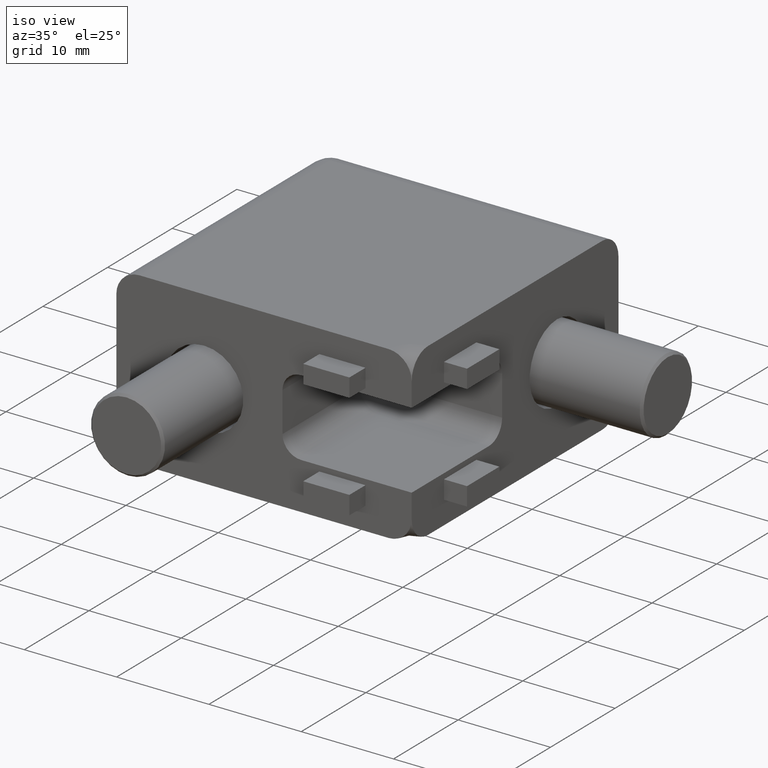
[diagram: clean part render]
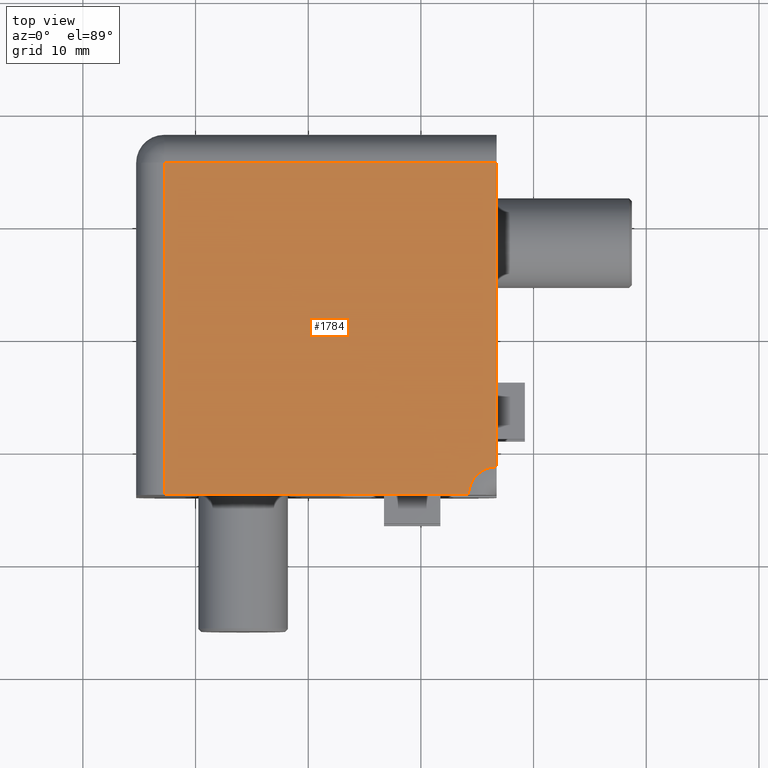
[diagram: tour spotlight — one face highlighted and labeled with its STEP entity id]
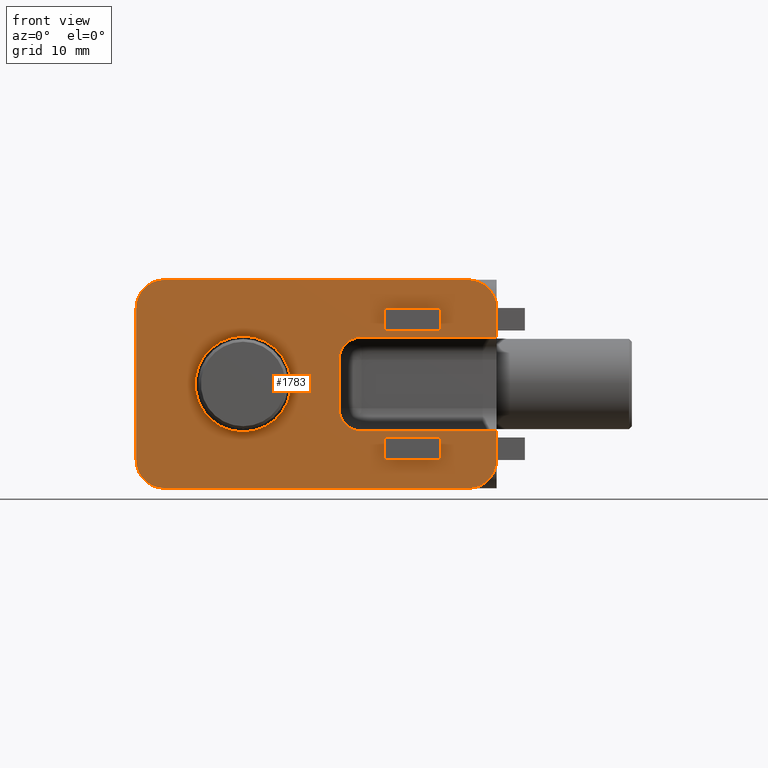
[diagram: tour spotlight — one face highlighted and labeled with its STEP entity id]
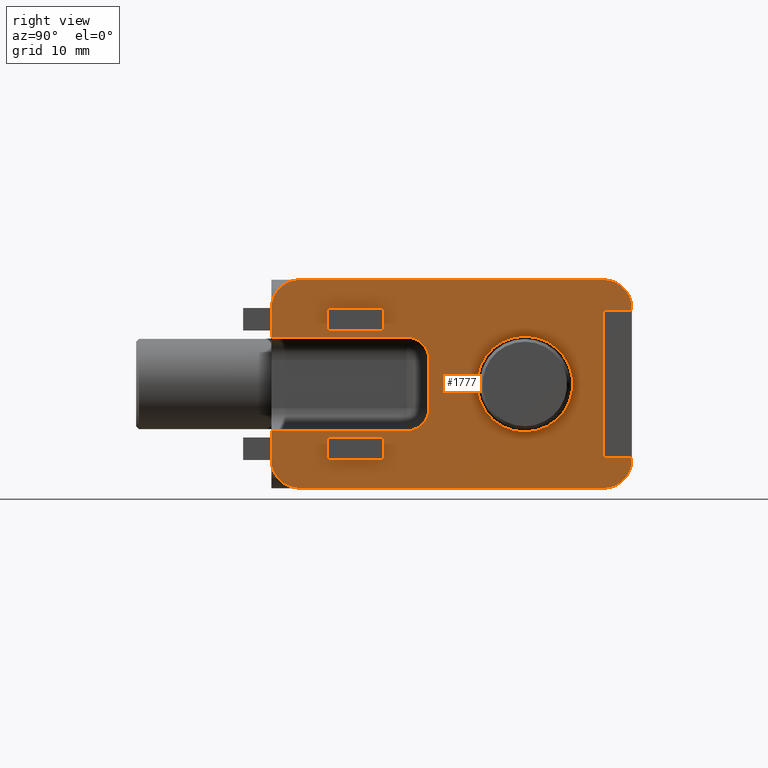
[diagram: tour spotlight — one face highlighted and labeled with its STEP entity id]
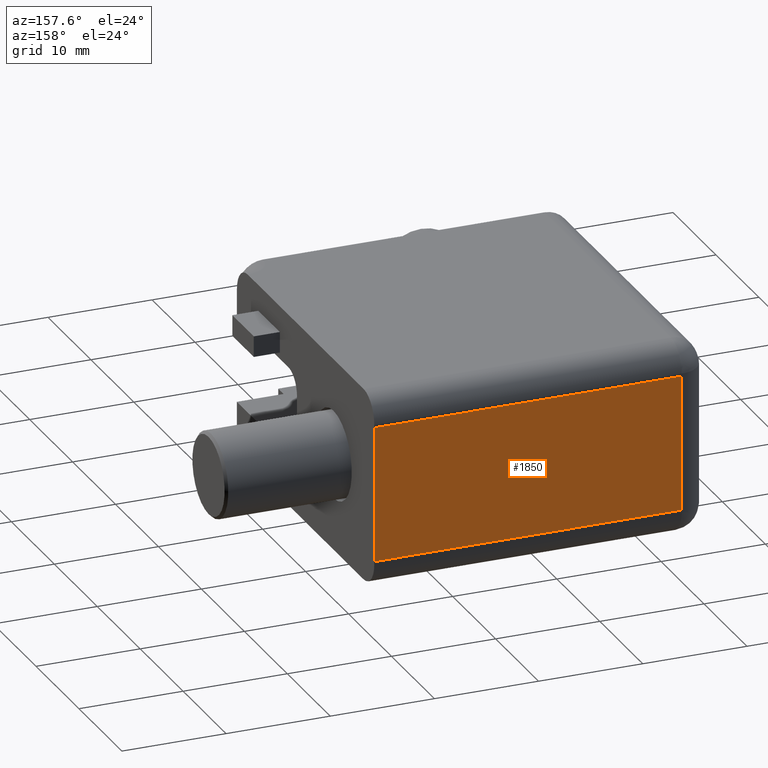
[diagram: tour spotlight — one face highlighted and labeled with its STEP entity id]
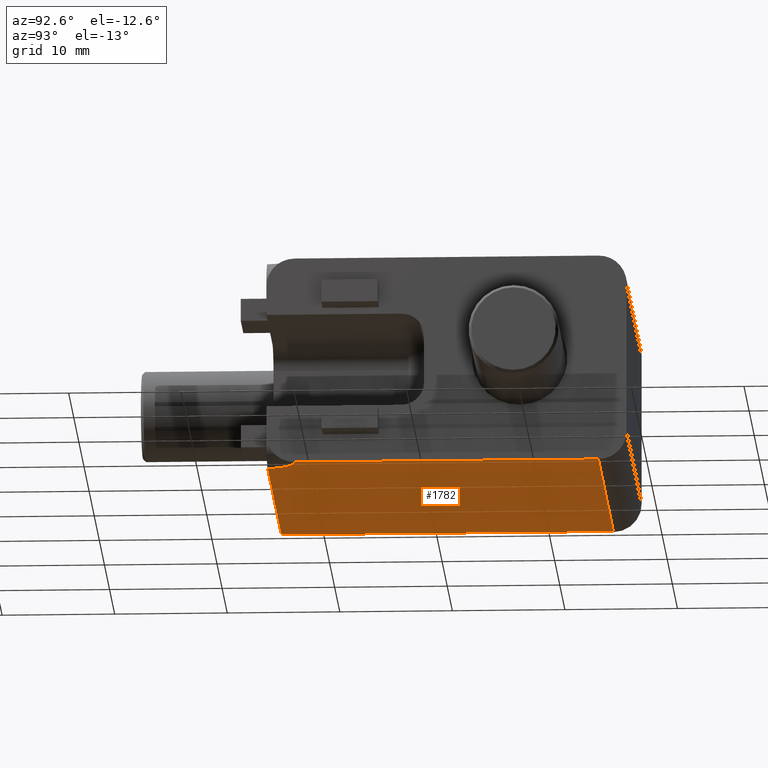
[diagram: tour spotlight — one face highlighted and labeled with its STEP entity id]
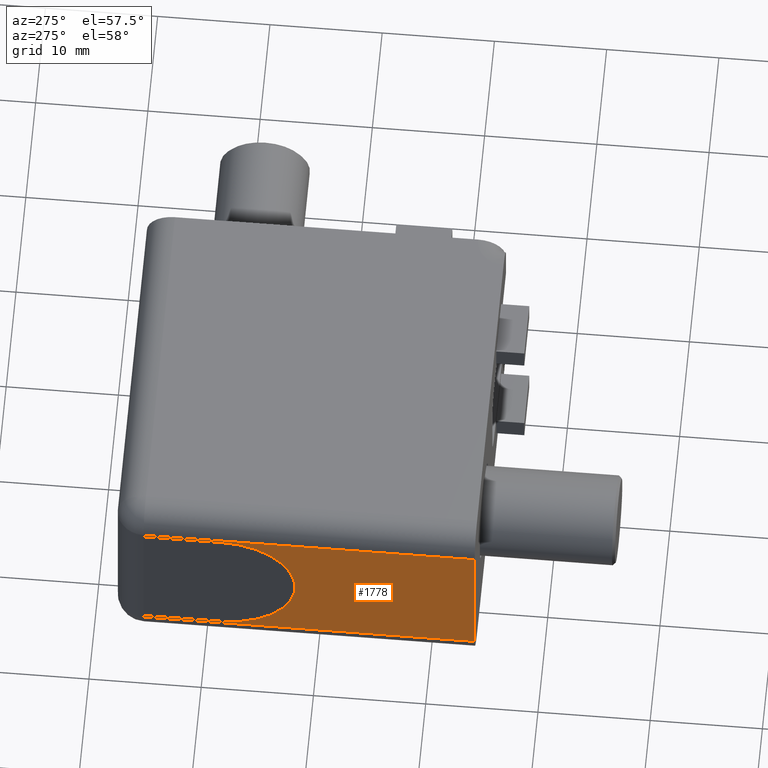
[diagram: tour spotlight — one face highlighted and labeled with its STEP entity id]
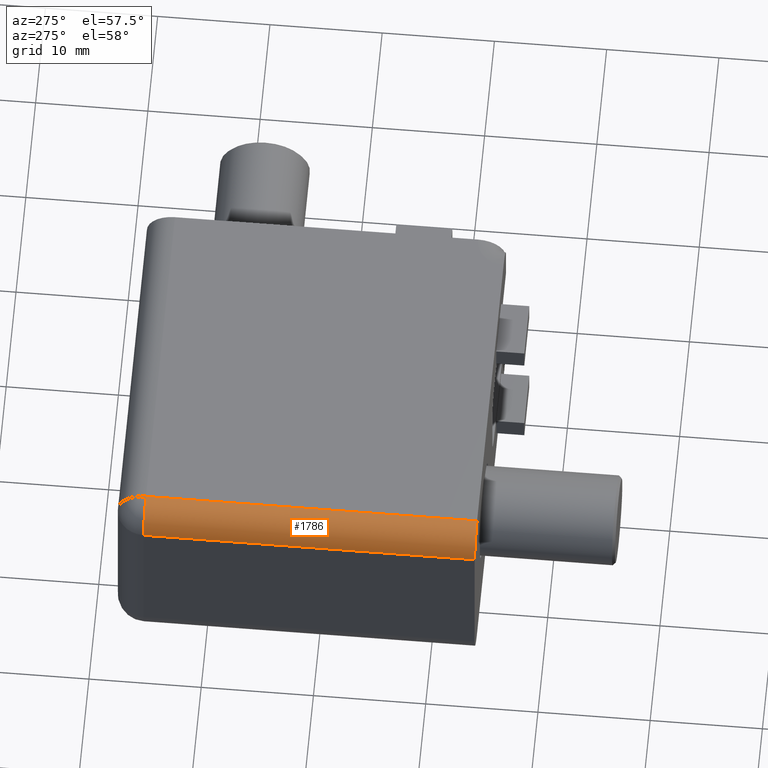
[diagram: tour spotlight — one face highlighted and labeled with its STEP entity id]
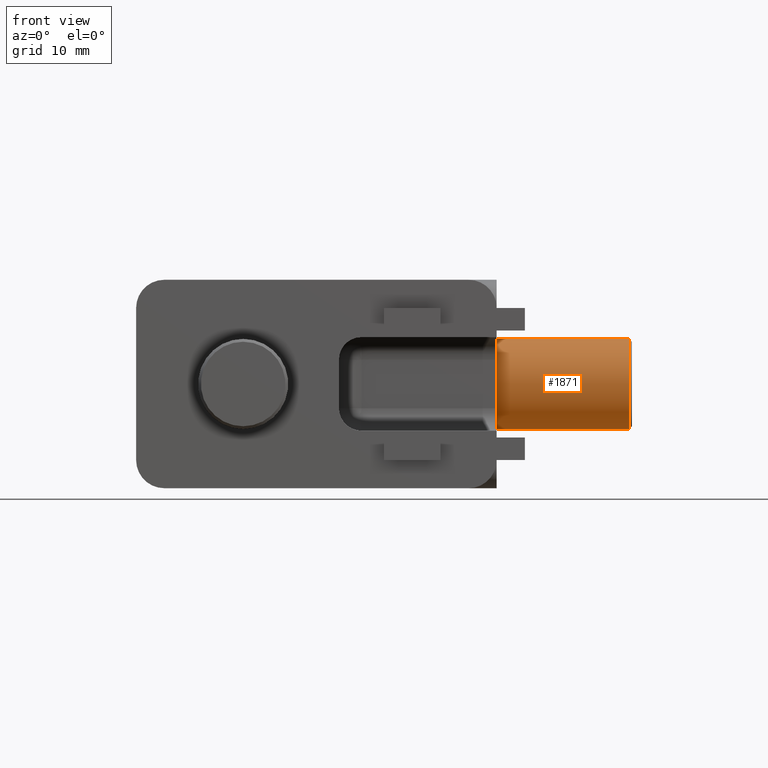
[diagram: tour spotlight — one face highlighted and labeled with its STEP entity id]
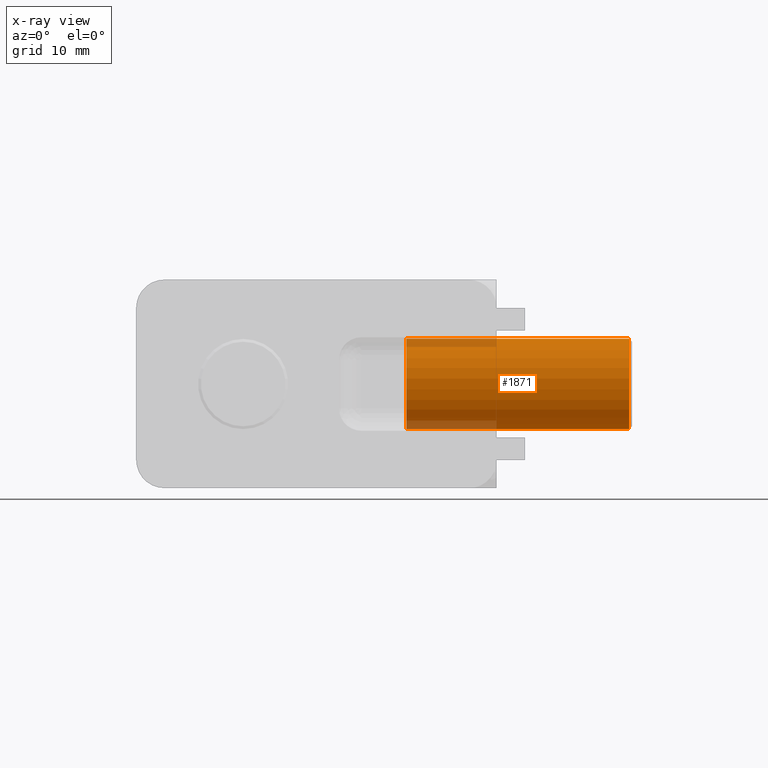
[diagram: x-ray of the same camera — body ghosted, this tour face saturated]
A machine part: a face-by-face anatomy tour. The part has 115 B-rep faces; the first image is the clean iso view, then the 8 largest visible faces are spotlighted one at a time (largest first), each with its STEP entity span.

Face 1 — top view, entity #1784. In plain terms, the highlighted planar face has unit normal (0, 0, -1).
Definition (entity closure, byte-faithful):
#58=PLANE('',#1956);
#146=FACE_OUTER_BOUND('',#267,.T.);
#267=EDGE_LOOP('',(#1332,#1333,#1334,#1335,#1336));
#396=LINE('',#2793,#570);
#427=LINE('',#2882,#601);
#436=LINE('',#2904,#610);
#437=LINE('',#2905,#611);
#570=VECTOR('',#2162,1000.);
#601=VECTOR('',#2235,1000.);
#610=VECTOR('',#2252,1000.);
#611=VECTOR('',#2253,1000.);
#758=CIRCLE('',#1957,2.5);
#826=VERTEX_POINT('',#2790);
#827=VERTEX_POINT('',#2792);
#863=VERTEX_POINT('',#2879);
#864=VERTEX_POINT('',#2881);
#873=VERTEX_POINT('',#2903);
#999=EDGE_CURVE('',#827,#826,#396,.T.);
#1045=EDGE_CURVE('',#864,#863,#427,.T.);
#1056=EDGE_CURVE('',#827,#863,#758,.T.);
#1057=EDGE_CURVE('',#826,#873,#436,.T.);
#1058=EDGE_CURVE('',#873,#864,#437,.T.);
#1332=ORIENTED_EDGE('',*,*,#1045,.T.);
#1333=ORIENTED_EDGE('',*,*,#1056,.F.);
#1334=ORIENTED_EDGE('',*,*,#999,.T.);
#1335=ORIENTED_EDGE('',*,*,#1057,.T.);
#1336=ORIENTED_EDGE('',*,*,#1058,.T.);
#1784=ADVANCED_FACE('',(#146),#58,.F.);
#1956=AXIS2_PLACEMENT_3D('',#2901,#2248,#2249);
#1957=AXIS2_PLACEMENT_3D('',#2902,#2250,#2251);
#2162=DIRECTION('',(0.,1.,0.));
#2235=DIRECTION('',(1.,0.,0.));
#2248=DIRECTION('center_axis',(0.,0.,-1.));
#2249=DIRECTION('ref_axis',(-1.,0.,0.));
#2250=DIRECTION('center_axis',(0.,0.,1.));
#2251=DIRECTION('ref_axis',(1.,0.,0.));
#2252=DIRECTION('',(-1.,0.,0.));
#2253=DIRECTION('',(0.,-1.,0.));
#2790=CARTESIAN_POINT('',(16.7248569721971,15.5522856449551,9.25));
#2792=CARTESIAN_POINT('',(16.7248569721971,-11.447714355045,9.25));
#2793=CARTESIAN_POINT('',(16.7248569721971,-13.947714355045,9.25));
#2879=CARTESIAN_POINT('',(14.2248569721971,-13.947714355045,9.25));
#2881=CARTESIAN_POINT('',(-12.7751430278029,-13.947714355045,9.25));
#2882=CARTESIAN_POINT('',(-15.2751430278029,-13.947714355045,9.25));
#2901=CARTESIAN_POINT('Origin',(-15.2751430278029,18.052285644955,9.25));
#2902=CARTESIAN_POINT('Origin',(16.7248569721971,-13.947714355045,9.25));
#2903=CARTESIAN_POINT('',(-12.7751430278029,15.5522856449551,9.25));
#2904=CARTESIAN_POINT('',(-15.2751430278029,15.5522856449551,9.25));
#2905=CARTESIAN_POINT('',(-12.7751430278029,18.052285644955,9.25));

Face 2 — front view, entity #1783. In plain terms, the highlighted planar face has unit normal (0, 1, 0).
Definition (entity closure, byte-faithful):
#35=FACE_BOUND('',#264,.T.);
#36=FACE_BOUND('',#265,.T.);
#37=FACE_BOUND('',#266,.T.);
#57=PLANE('',#1949);
#145=FACE_OUTER_BOUND('',#263,.T.);
#263=EDGE_LOOP('',(#1309,#1310,#1311,#1312,#1313,#1314,#1315,#1316,#1317,
#1318,#1319,#1320,#1321,#1322));
#264=EDGE_LOOP('',(#1323,#1324,#1325,#1326));
#265=EDGE_LOOP('',(#1327,#1328,#1329,#1330));
#266=EDGE_LOOP('',(#1331));
#397=LINE('',#2797,#571);
#401=LINE('',#2809,#575);
#415=LINE('',#2844,#589);
#421=LINE('',#2864,#595);
#424=LINE('',#2871,#598);
#425=LINE('',#2875,#599);
#426=LINE('',#2878,#600);
#427=LINE('',#2882,#601);
#428=LINE('',#2887,#602);
#429=LINE('',#2889,#603);
#430=LINE('',#2891,#604);
#431=LINE('',#2892,#605);
#432=LINE('',#2895,#606);
#433=LINE('',#2897,#607);
#434=LINE('',#2899,#608);
#435=LINE('',#2900,#609);
#571=VECTOR('',#2165,1000.);
#575=VECTOR('',#2173,1000.);
#589=VECTOR('',#2195,1000.);
#595=VECTOR('',#2219,1000.);
#598=VECTOR('',#2226,1000.);
#599=VECTOR('',#2229,1000.);
#600=VECTOR('',#2232,1000.);
#601=VECTOR('',#2235,1000.);
#602=VECTOR('',#2240,1000.);
#603=VECTOR('',#2241,1000.);
#604=VECTOR('',#2242,1000.);
#605=VECTOR('',#2243,1000.);
#606=VECTOR('',#2244,1000.);
#607=VECTOR('',#2245,1000.);
#608=VECTOR('',#2246,1000.);
#609=VECTOR('',#2247,1000.);
#737=CIRCLE('',#1924,4.25);
#752=CIRCLE('',#1950,2.5);
#753=CIRCLE('',#1951,2.);
#754=CIRCLE('',#1952,2.);
#755=CIRCLE('',#1953,2.5);
#756=CIRCLE('',#1954,2.5);
#757=CIRCLE('',#1955,2.5);
#813=VERTEX_POINT('',#2759);
#828=VERTEX_POINT('',#2794);
#829=VERTEX_POINT('',#2796);
#834=VERTEX_POINT('',#2806);
#835=VERTEX_POINT('',#2808);
#851=VERTEX_POINT('',#2841);
#852=VERTEX_POINT('',#2843);
#856=VERTEX_POINT('',#2861);
#857=VERTEX_POINT('',#2863);
#859=VERTEX_POINT('',#2870);
#860=VERTEX_POINT('',#2872);
#861=VERTEX_POINT('',#2874);
#862=VERTEX_POINT('',#2876);
#863=VERTEX_POINT('',#2879);
#864=VERTEX_POINT('',#2881);
#865=VERTEX_POINT('',#2885);
#866=VERTEX_POINT('',#2886);
#867=VERTEX_POINT('',#2888);
#868=VERTEX_POINT('',#2890);
#869=VERTEX_POINT('',#2893);
#870=VERTEX_POINT('',#2894);
#871=VERTEX_POINT('',#2896);
#872=VERTEX_POINT('',#2898);
#983=EDGE_CURVE('',#813,#813,#737,.T.);
#1001=EDGE_CURVE('',#828,#829,#397,.T.);
#1007=EDGE_CURVE('',#834,#835,#401,.T.);
#1024=EDGE_CURVE('',#852,#851,#415,.T.);
#1035=EDGE_CURVE('',#857,#856,#421,.T.);
#1038=EDGE_CURVE('',#856,#835,#752,.T.);
#1039=EDGE_CURVE('',#859,#834,#424,.T.);
#1040=EDGE_CURVE('',#859,#860,#753,.T.);
#1041=EDGE_CURVE('',#861,#860,#425,.T.);
#1042=EDGE_CURVE('',#861,#862,#754,.T.);
#1043=EDGE_CURVE('',#829,#862,#426,.T.);
#1044=EDGE_CURVE('',#828,#863,#755,.T.);
#1045=EDGE_CURVE('',#864,#863,#427,.T.);
#1046=EDGE_CURVE('',#864,#852,#756,.T.);
#1047=EDGE_CURVE('',#851,#857,#757,.T.);
#1048=EDGE_CURVE('',#865,#866,#428,.T.);
#1049=EDGE_CURVE('',#866,#867,#429,.T.);
#1050=EDGE_CURVE('',#867,#868,#430,.T.);
#1051=EDGE_CURVE('',#868,#865,#431,.T.);
#1052=EDGE_CURVE('',#869,#870,#432,.T.);
#1053=EDGE_CURVE('',#870,#871,#433,.T.);
#1054=EDGE_CURVE('',#871,#872,#434,.T.);
#1055=EDGE_CURVE('',#872,#869,#435,.T.);
#1309=ORIENTED_EDGE('',*,*,#1035,.T.);
#1310=ORIENTED_EDGE('',*,*,#1038,.T.);
#1311=ORIENTED_EDGE('',*,*,#1007,.F.);
#1312=ORIENTED_EDGE('',*,*,#1039,.F.);
#1313=ORIENTED_EDGE('',*,*,#1040,.T.);
#1314=ORIENTED_EDGE('',*,*,#1041,.F.);
#1315=ORIENTED_EDGE('',*,*,#1042,.T.);
#1316=ORIENTED_EDGE('',*,*,#1043,.F.);
#1317=ORIENTED_EDGE('',*,*,#1001,.F.);
#1318=ORIENTED_EDGE('',*,*,#1044,.T.);
#1319=ORIENTED_EDGE('',*,*,#1045,.F.);
#1320=ORIENTED_EDGE('',*,*,#1046,.T.);
#1321=ORIENTED_EDGE('',*,*,#1024,.T.);
#1322=ORIENTED_EDGE('',*,*,#1047,.T.);
#1323=ORIENTED_EDGE('',*,*,#1048,.T.);
#1324=ORIENTED_EDGE('',*,*,#1049,.T.);
#1325=ORIENTED_EDGE('',*,*,#1050,.T.);
#1326=ORIENTED_EDGE('',*,*,#1051,.T.);
#1327=ORIENTED_EDGE('',*,*,#1052,.T.);
#1328=ORIENTED_EDGE('',*,*,#1053,.T.);
#1329=ORIENTED_EDGE('',*,*,#1054,.T.);
#1330=ORIENTED_EDGE('',*,*,#1055,.T.);
#1331=ORIENTED_EDGE('',*,*,#983,.T.);
#1783=ADVANCED_FACE('',(#145,#35,#36,#37),#57,.F.);
#1924=AXIS2_PLACEMENT_3D('',#2760,#2134,#2135);
#1949=AXIS2_PLACEMENT_3D('',#2868,#2222,#2223);
#1950=AXIS2_PLACEMENT_3D('',#2869,#2224,#2225);
#1951=AXIS2_PLACEMENT_3D('',#2873,#2227,#2228);
#1952=AXIS2_PLACEMENT_3D('',#2877,#2230,#2231);
#1953=AXIS2_PLACEMENT_3D('',#2880,#2233,#2234);
#1954=AXIS2_PLACEMENT_3D('',#2883,#2236,#2237);
#1955=AXIS2_PLACEMENT_3D('',#2884,#2238,#2239);
#2134=DIRECTION('center_axis',(0.,1.,0.));
#2135=DIRECTION('ref_axis',(0.,0.,1.));
#2165=DIRECTION('',(0.,0.,-1.));
#2173=DIRECTION('',(0.,0.,-1.));
#2195=DIRECTION('',(0.,0.,-1.));
#2219=DIRECTION('',(1.,0.,0.));
#2222=DIRECTION('center_axis',(0.,1.,0.));
#2223=DIRECTION('ref_axis',(0.,0.,1.));
#2224=DIRECTION('center_axis',(0.,-1.,0.));
#2225=DIRECTION('ref_axis',(0.,0.,1.));
#2226=DIRECTION('',(1.,0.,-1.23908819712629E-16));
#2227=DIRECTION('center_axis',(0.,1.,0.));
#2228=DIRECTION('ref_axis',(0.,0.,1.));
#2229=DIRECTION('',(0.,0.,-1.));
#2230=DIRECTION('center_axis',(0.,1.,0.));
#2231=DIRECTION('ref_axis',(0.,0.,1.));
#2232=DIRECTION('',(-1.,0.,-1.23908819712629E-16));
#2233=DIRECTION('center_axis',(0.,-1.,0.));
#2234=DIRECTION('ref_axis',(0.,0.,1.));
#2235=DIRECTION('',(1.,0.,0.));
#2236=DIRECTION('center_axis',(0.,-1.,0.));
#2237=DIRECTION('ref_axis',(0.,0.,1.));
#2238=DIRECTION('center_axis',(0.,-1.,0.));
#2239=DIRECTION('ref_axis',(8.67361737988403E-16,0.,1.));
#2240=DIRECTION('',(-1.,3.33066907387547E-15,0.));
#2241=DIRECTION('',(0.,0.,1.));
#2242=DIRECTION('',(1.,-3.33066907387547E-15,0.));
#2243=DIRECTION('',(0.,0.,-1.));
#2244=DIRECTION('',(0.,0.,1.));
#2245=DIRECTION('',(1.,-3.33066907387547E-15,0.));
#2246=DIRECTION('',(0.,0.,-1.));
#2247=DIRECTION('',(-1.,3.33066907387547E-15,0.));
#2759=CARTESIAN_POINT('',(-5.77514302780293,-13.947714355045,-4.25));
#2760=CARTESIAN_POINT('Origin',(-5.77514302780293,-13.947714355045,8.67361737988404E-16));
#2794=CARTESIAN_POINT('',(16.7248569721971,-13.947714355045,6.75));
#2796=CARTESIAN_POINT('',(16.7248569721971,-13.947714355045,4.15));
#2797=CARTESIAN_POINT('',(16.7248569721971,-13.947714355045,9.25));
#2806=CARTESIAN_POINT('',(16.7248569721971,-13.947714355045,-4.15));
#2808=CARTESIAN_POINT('',(16.7248569721971,-13.947714355045,-6.75));
#2809=CARTESIAN_POINT('',(16.7248569721971,-13.947714355045,9.25));
#2841=CARTESIAN_POINT('',(-15.2751430278029,-13.947714355045,-6.75));
#2843=CARTESIAN_POINT('',(-15.2751430278029,-13.947714355045,6.75));
#2844=CARTESIAN_POINT('',(-15.2751430278029,-13.947714355045,9.25));
#2861=CARTESIAN_POINT('',(14.2248569721971,-13.947714355045,-9.25));
#2863=CARTESIAN_POINT('',(-12.7751430278029,-13.947714355045,-9.25));
#2864=CARTESIAN_POINT('',(-15.2751430278029,-13.947714355045,-9.25));
#2868=CARTESIAN_POINT('Origin',(-15.2751430278029,-13.947714355045,9.25));
#2869=CARTESIAN_POINT('Origin',(14.2248569721971,-13.947714355045,-6.75));
#2870=CARTESIAN_POINT('',(4.72485697219708,-13.947714355045,-4.15));
#2871=CARTESIAN_POINT('',(16.7248569721971,-13.947714355045,-4.15));
#2872=CARTESIAN_POINT('',(2.72485697219707,-13.947714355045,-2.15));
#2873=CARTESIAN_POINT('Origin',(4.72485697219707,-13.947714355045,-2.15));
#2874=CARTESIAN_POINT('',(2.72485697219707,-13.947714355045,2.15));
#2875=CARTESIAN_POINT('',(2.72485697219707,-13.947714355045,4.15));
#2876=CARTESIAN_POINT('',(4.72485697219708,-13.947714355045,4.15));
#2877=CARTESIAN_POINT('Origin',(4.72485697219707,-13.947714355045,2.15));
#2878=CARTESIAN_POINT('',(16.7248569721971,-13.947714355045,4.15));
#2879=CARTESIAN_POINT('',(14.2248569721971,-13.947714355045,9.25));
#2880=CARTESIAN_POINT('Origin',(14.2248569721971,-13.947714355045,6.75));
#2881=CARTESIAN_POINT('',(-12.7751430278029,-13.947714355045,9.25));
#2882=CARTESIAN_POINT('',(-15.2751430278029,-13.947714355045,9.25));
#2883=CARTESIAN_POINT('Origin',(-12.7751430278029,-13.947714355045,6.75));
#2884=CARTESIAN_POINT('Origin',(-12.7751430278029,-13.947714355045,-6.75));
#2885=CARTESIAN_POINT('',(11.7248569721971,-13.9477143550449,-6.75));
#2886=CARTESIAN_POINT('',(6.72485697219707,-13.9477143550449,-6.75));
#2887=CARTESIAN_POINT('',(6.72485697219707,-13.9477143550449,-6.75));
#2888=CARTESIAN_POINT('',(6.72485697219707,-13.9477143550449,-4.75));
#2889=CARTESIAN_POINT('',(6.72485697219707,-13.9477143550449,-6.75));
#2890=CARTESIAN_POINT('',(11.7248569721971,-13.947714355045,-4.75));
#2891=CARTESIAN_POINT('',(6.72485697219707,-13.9477143550449,-4.75));
#2892=CARTESIAN_POINT('',(11.7248569721971,-13.9477143550449,-6.75));
#2893=CARTESIAN_POINT('',(6.72485697219707,-13.9477143550449,4.75));
#2894=CARTESIAN_POINT('',(6.72485697219707,-13.9477143550449,6.75));
#2895=CARTESIAN_POINT('',(6.72485697219707,-13.9477143550449,6.75));
#2896=CARTESIAN_POINT('',(11.7248569721971,-13.9477143550449,6.75));
#2897=CARTESIAN_POINT('',(6.72485697219707,-13.9477143550449,6.75));
#2898=CARTESIAN_POINT('',(11.7248569721971,-13.947714355045,4.75));
#2899=CARTESIAN_POINT('',(11.7248569721971,-13.9477143550449,6.75));
#2900=CARTESIAN_POINT('',(6.72485697219707,-13.9477143550449,4.75));

Face 3 — right view, entity #1777. In plain terms, the highlighted planar face has unit normal (-1, 0, 0).
Definition (entity closure, byte-faithful):
#32=FACE_BOUND('',#255,.T.);
#33=FACE_BOUND('',#256,.T.);
#34=FACE_BOUND('',#257,.T.);
#53=PLANE('',#1931);
#139=FACE_OUTER_BOUND('',#254,.T.);
#254=EDGE_LOOP('',(#1257,#1258,#1259,#1260,#1261,#1262,#1263,#1264,#1265,
#1266,#1267,#1268,#1269,#1270,#1271,#1272,#1273,#1274));
#255=EDGE_LOOP('',(#1275,#1276,#1277,#1278));
#256=EDGE_LOOP('',(#1279));
#257=EDGE_LOOP('',(#1280,#1281,#1282,#1283));
#389=LINE('',#2777,#563);
#392=LINE('',#2783,#566);
#393=LINE('',#2785,#567);
#394=LINE('',#2787,#568);
#395=LINE('',#2789,#569);
#396=LINE('',#2793,#570);
#397=LINE('',#2797,#571);
#398=LINE('',#2799,#572);
#399=LINE('',#2803,#573);
#400=LINE('',#2807,#574);
#401=LINE('',#2809,#575);
#402=LINE('',#2813,#576);
#403=LINE('',#2817,#577);
#404=LINE('',#2819,#578);
#405=LINE('',#2821,#579);
#406=LINE('',#2822,#580);
#407=LINE('',#2825,#581);
#408=LINE('',#2827,#582);
#409=LINE('',#2829,#583);
#410=LINE('',#2830,#584);
#563=VECTOR('',#2151,1000.);
#566=VECTOR('',#2156,1000.);
#567=VECTOR('',#2157,1000.);
#568=VECTOR('',#2158,1000.);
#569=VECTOR('',#2159,1000.);
#570=VECTOR('',#2162,1000.);
#571=VECTOR('',#2165,1000.);
#572=VECTOR('',#2166,1000.);
#573=VECTOR('',#2169,1000.);
#574=VECTOR('',#2172,1000.);
#575=VECTOR('',#2173,1000.);
#576=VECTOR('',#2176,1000.);
#577=VECTOR('',#2179,1000.);
#578=VECTOR('',#2180,1000.);
#579=VECTOR('',#2181,1000.);
#580=VECTOR('',#2182,1000.);
#581=VECTOR('',#2183,1000.);
#582=VECTOR('',#2184,1000.);
#583=VECTOR('',#2185,1000.);
#584=VECTOR('',#2186,1000.);
#735=CIRCLE('',#1921,4.25);
#740=CIRCLE('',#1932,2.5);
#741=CIRCLE('',#1933,2.5);
#742=CIRCLE('',#1934,2.);
#743=CIRCLE('',#1935,2.);
#744=CIRCLE('',#1936,2.5);
#745=CIRCLE('',#1937,2.5);
#811=VERTEX_POINT('',#2753);
#819=VERTEX_POINT('',#2774);
#820=VERTEX_POINT('',#2776);
#822=VERTEX_POINT('',#2782);
#823=VERTEX_POINT('',#2784);
#824=VERTEX_POINT('',#2786);
#825=VERTEX_POINT('',#2788);
#826=VERTEX_POINT('',#2790);
#827=VERTEX_POINT('',#2792);
#828=VERTEX_POINT('',#2794);
#829=VERTEX_POINT('',#2796);
#830=VERTEX_POINT('',#2798);
#831=VERTEX_POINT('',#2800);
#832=VERTEX_POINT('',#2802);
#833=VERTEX_POINT('',#2804);
#834=VERTEX_POINT('',#2806);
#835=VERTEX_POINT('',#2808);
#836=VERTEX_POINT('',#2810);
#837=VERTEX_POINT('',#2812);
#838=VERTEX_POINT('',#2815);
#839=VERTEX_POINT('',#2816);
#840=VERTEX_POINT('',#2818);
#841=VERTEX_POINT('',#2820);
#842=VERTEX_POINT('',#2823);
#843=VERTEX_POINT('',#2824);
#844=VERTEX_POINT('',#2826);
#845=VERTEX_POINT('',#2828);
#980=EDGE_CURVE('',#811,#811,#735,.T.);
#991=EDGE_CURVE('',#819,#820,#389,.T.);
#994=EDGE_CURVE('',#819,#822,#392,.T.);
#995=EDGE_CURVE('',#822,#823,#393,.T.);
#996=EDGE_CURVE('',#823,#824,#394,.T.);
#997=EDGE_CURVE('',#825,#824,#395,.T.);
#998=EDGE_CURVE('',#825,#826,#740,.T.);
#999=EDGE_CURVE('',#827,#826,#396,.T.);
#1000=EDGE_CURVE('',#827,#828,#741,.T.);
#1001=EDGE_CURVE('',#828,#829,#397,.T.);
#1002=EDGE_CURVE('',#830,#829,#398,.T.);
#1003=EDGE_CURVE('',#830,#831,#742,.T.);
#1004=EDGE_CURVE('',#832,#831,#399,.T.);
#1005=EDGE_CURVE('',#832,#833,#743,.T.);
#1006=EDGE_CURVE('',#833,#834,#400,.T.);
#1007=EDGE_CURVE('',#834,#835,#401,.T.);
#1008=EDGE_CURVE('',#835,#836,#744,.T.);
#1009=EDGE_CURVE('',#836,#837,#402,.T.);
#1010=EDGE_CURVE('',#837,#820,#745,.T.);
#1011=EDGE_CURVE('',#838,#839,#403,.T.);
#1012=EDGE_CURVE('',#840,#838,#404,.T.);
#1013=EDGE_CURVE('',#841,#840,#405,.T.);
#1014=EDGE_CURVE('',#839,#841,#406,.T.);
#1015=EDGE_CURVE('',#842,#843,#407,.T.);
#1016=EDGE_CURVE('',#844,#842,#408,.T.);
#1017=EDGE_CURVE('',#845,#844,#409,.T.);
#1018=EDGE_CURVE('',#843,#845,#410,.T.);
#1257=ORIENTED_EDGE('',*,*,#991,.F.);
#1258=ORIENTED_EDGE('',*,*,#994,.T.);
#1259=ORIENTED_EDGE('',*,*,#995,.T.);
#1260=ORIENTED_EDGE('',*,*,#996,.T.);
#1261=ORIENTED_EDGE('',*,*,#997,.F.);
#1262=ORIENTED_EDGE('',*,*,#998,.T.);
#1263=ORIENTED_EDGE('',*,*,#999,.F.);
#1264=ORIENTED_EDGE('',*,*,#1000,.T.);
#1265=ORIENTED_EDGE('',*,*,#1001,.T.);
#1266=ORIENTED_EDGE('',*,*,#1002,.F.);
#1267=ORIENTED_EDGE('',*,*,#1003,.T.);
#1268=ORIENTED_EDGE('',*,*,#1004,.F.);
#1269=ORIENTED_EDGE('',*,*,#1005,.T.);
#1270=ORIENTED_EDGE('',*,*,#1006,.T.);
#1271=ORIENTED_EDGE('',*,*,#1007,.T.);
#1272=ORIENTED_EDGE('',*,*,#1008,.T.);
#1273=ORIENTED_EDGE('',*,*,#1009,.T.);
#1274=ORIENTED_EDGE('',*,*,#1010,.T.);
#1275=ORIENTED_EDGE('',*,*,#1011,.F.);
#1276=ORIENTED_EDGE('',*,*,#1012,.F.);
#1277=ORIENTED_EDGE('',*,*,#1013,.F.);
#1278=ORIENTED_EDGE('',*,*,#1014,.F.);
#1279=ORIENTED_EDGE('',*,*,#980,.T.);
#1280=ORIENTED_EDGE('',*,*,#1015,.F.);
#1281=ORIENTED_EDGE('',*,*,#1016,.F.);
#1282=ORIENTED_EDGE('',*,*,#1017,.F.);
#1283=ORIENTED_EDGE('',*,*,#1018,.F.);
#1777=ADVANCED_FACE('',(#139,#32,#33,#34),#53,.F.);
#1921=AXIS2_PLACEMENT_3D('',#2754,#2127,#2128);
#1931=AXIS2_PLACEMENT_3D('',#2781,#2154,#2155);
#1932=AXIS2_PLACEMENT_3D('',#2791,#2160,#2161);
#1933=AXIS2_PLACEMENT_3D('',#2795,#2163,#2164);
#1934=AXIS2_PLACEMENT_3D('',#2801,#2167,#2168);
#1935=AXIS2_PLACEMENT_3D('',#2805,#2170,#2171);
#1936=AXIS2_PLACEMENT_3D('',#2811,#2174,#2175);
#1937=AXIS2_PLACEMENT_3D('',#2814,#2177,#2178);
#2127=DIRECTION('center_axis',(-1.,0.,0.));
#2128=DIRECTION('ref_axis',(0.,0.,1.));
#2151=DIRECTION('',(0.,0.,-1.));
#2154=DIRECTION('center_axis',(-1.,0.,0.));
#2155=DIRECTION('ref_axis',(0.,0.,1.));
#2156=DIRECTION('',(0.,-1.,0.));
#2157=DIRECTION('',(0.,0.,1.));
#2158=DIRECTION('',(0.,1.,-3.46944695195362E-16));
#2159=DIRECTION('',(0.,0.,-1.));
#2160=DIRECTION('center_axis',(1.,0.,0.));
#2161=DIRECTION('ref_axis',(0.,0.,1.));
#2162=DIRECTION('',(0.,1.,0.));
#2163=DIRECTION('center_axis',(1.,0.,0.));
#2164=DIRECTION('ref_axis',(0.,0.,1.));
#2165=DIRECTION('',(0.,0.,-1.));
#2166=DIRECTION('',(0.,-1.,0.));
#2167=DIRECTION('center_axis',(-1.,0.,0.));
#2168=DIRECTION('ref_axis',(0.,0.,1.));
#2169=DIRECTION('',(0.,0.,1.));
#2170=DIRECTION('center_axis',(-1.,0.,0.));
#2171=DIRECTION('ref_axis',(0.,0.,1.));
#2172=DIRECTION('',(0.,-1.,0.));
#2173=DIRECTION('',(0.,0.,-1.));
#2174=DIRECTION('center_axis',(1.,0.,0.));
#2175=DIRECTION('ref_axis',(0.,8.67361737988404E-16,1.));
#2176=DIRECTION('',(0.,1.,0.));
#2177=DIRECTION('center_axis',(1.,0.,0.));
#2178=DIRECTION('ref_axis',(0.,0.,1.));
#2179=DIRECTION('',(0.,-1.,0.));
#2180=DIRECTION('',(0.,0.,1.));
#2181=DIRECTION('',(0.,1.,0.));
#2182=DIRECTION('',(0.,0.,-1.));
#2183=DIRECTION('',(0.,0.,1.));
#2184=DIRECTION('',(0.,1.,0.));
#2185=DIRECTION('',(0.,0.,-1.));
#2186=DIRECTION('',(0.,-1.,0.));
#2753=CARTESIAN_POINT('',(16.7248569721971,8.55228564495505,-4.25));
#2754=CARTESIAN_POINT('Origin',(16.7248569721971,8.55228564495505,1.73472347597681E-15));
#2774=CARTESIAN_POINT('',(16.7248569721971,18.052285644955,-6.5));
#2776=CARTESIAN_POINT('',(16.7248569721971,18.052285644955,-6.75));
#2777=CARTESIAN_POINT('',(16.7248569721971,18.052285644955,9.25));
#2781=CARTESIAN_POINT('Origin',(16.7248569721971,-13.947714355045,9.25));
#2782=CARTESIAN_POINT('',(16.7248569721971,15.5522856449551,-6.5));
#2783=CARTESIAN_POINT('',(16.7248569721971,-13.947714355045,-6.5));
#2784=CARTESIAN_POINT('',(16.7248569721971,15.5522856449551,6.5));
#2785=CARTESIAN_POINT('',(16.7248569721971,15.5522856449551,9.25));
#2786=CARTESIAN_POINT('',(16.7248569721971,18.052285644955,6.5));
#2787=CARTESIAN_POINT('',(16.7248569721971,-13.947714355045,6.50000000000001));
#2788=CARTESIAN_POINT('',(16.7248569721971,18.052285644955,6.75));
#2789=CARTESIAN_POINT('',(16.7248569721971,18.052285644955,9.25));
#2790=CARTESIAN_POINT('',(16.7248569721971,15.5522856449551,9.25));
#2791=CARTESIAN_POINT('Origin',(16.7248569721971,15.5522856449551,6.75));
#2792=CARTESIAN_POINT('',(16.7248569721971,-11.447714355045,9.25));
#2793=CARTESIAN_POINT('',(16.7248569721971,-13.947714355045,9.25));
#2794=CARTESIAN_POINT('',(16.7248569721971,-13.947714355045,6.75));
#2795=CARTESIAN_POINT('Origin',(16.7248569721971,-11.447714355045,6.75));
#2796=CARTESIAN_POINT('',(16.7248569721971,-13.947714355045,4.15));
#2797=CARTESIAN_POINT('',(16.7248569721971,-13.947714355045,9.25));
#2798=CARTESIAN_POINT('',(16.7248569721971,-1.94771435504495,4.15));
#2799=CARTESIAN_POINT('',(16.7248569721971,0.0522856449550502,4.15));
#2800=CARTESIAN_POINT('',(16.7248569721971,0.0522856449550502,2.15));
#2801=CARTESIAN_POINT('Origin',(16.7248569721971,-1.94771435504495,2.15));
#2802=CARTESIAN_POINT('',(16.7248569721971,0.0522856449550502,-2.15));
#2803=CARTESIAN_POINT('',(16.7248569721971,0.0522856449550502,-4.15));
#2804=CARTESIAN_POINT('',(16.7248569721971,-1.94771435504495,-4.15));
#2805=CARTESIAN_POINT('Origin',(16.7248569721971,-1.94771435504495,-2.15));
#2806=CARTESIAN_POINT('',(16.7248569721971,-13.947714355045,-4.15));
#2807=CARTESIAN_POINT('',(16.7248569721971,0.0522856449550502,-4.15));
#2808=CARTESIAN_POINT('',(16.7248569721971,-13.947714355045,-6.75));
#2809=CARTESIAN_POINT('',(16.7248569721971,-13.947714355045,9.25));
#2810=CARTESIAN_POINT('',(16.7248569721971,-11.447714355045,-9.25));
#2811=CARTESIAN_POINT('Origin',(16.7248569721971,-11.447714355045,-6.75));
#2812=CARTESIAN_POINT('',(16.7248569721971,15.5522856449551,-9.25));
#2813=CARTESIAN_POINT('',(16.7248569721971,-13.947714355045,-9.25));
#2814=CARTESIAN_POINT('Origin',(16.7248569721971,15.5522856449551,-6.75));
#2815=CARTESIAN_POINT('',(16.7248569721971,-3.94771435504495,6.75));
#2816=CARTESIAN_POINT('',(16.7248569721971,-8.94771435504495,6.75));
#2817=CARTESIAN_POINT('',(16.7248569721971,-3.94771435504495,6.75));
#2818=CARTESIAN_POINT('',(16.7248569721971,-3.94771435504495,4.75));
#2819=CARTESIAN_POINT('',(16.7248569721971,-3.94771435504495,6.75));
#2820=CARTESIAN_POINT('',(16.7248569721971,-8.94771435504495,4.75));
#2821=CARTESIAN_POINT('',(16.7248569721971,-3.94771435504495,4.75));
#2822=CARTESIAN_POINT('',(16.7248569721971,-8.94771435504495,6.75));
#2823=CARTESIAN_POINT('',(16.7248569721971,-3.94771435504495,-6.75));
#2824=CARTESIAN_POINT('',(16.7248569721971,-3.94771435504495,-4.75));
#2825=CARTESIAN_POINT('',(16.7248569721971,-3.94771435504495,-6.75));
#2826=CARTESIAN_POINT('',(16.7248569721971,-8.94771435504495,-6.75));
#2827=CARTESIAN_POINT('',(16.7248569721971,-3.94771435504495,-6.75));
#2828=CARTESIAN_POINT('',(16.7248569721971,-8.94771435504495,-4.75));
#2829=CARTESIAN_POINT('',(16.7248569721971,-8.94771435504495,-6.75));
#2830=CARTESIAN_POINT('',(16.7248569721971,-3.94771435504495,-4.75));

Face 4 — auxiliary view, entity #1850. In plain terms, the highlighted planar face has unit normal (0, -1, 0).
Definition (entity closure, byte-faithful):
#97=PLANE('',#2049);
#212=FACE_OUTER_BOUND('',#343,.T.);
#343=EDGE_LOOP('',(#1604,#1605,#1606,#1607));
#502=LINE('',#3202,#676);
#506=LINE('',#3210,#680);
#511=LINE('',#3223,#685);
#512=LINE('',#3226,#686);
#676=VECTOR('',#2484,1000.);
#680=VECTOR('',#2492,1000.);
#685=VECTOR('',#2507,1000.);
#686=VECTOR('',#2512,1000.);
#923=VERTEX_POINT('',#3199);
#924=VERTEX_POINT('',#3201);
#926=VERTEX_POINT('',#3208);
#929=VERTEX_POINT('',#3222);
#1152=EDGE_CURVE('',#924,#923,#502,.T.);
#1157=EDGE_CURVE('',#923,#926,#506,.T.);
#1163=EDGE_CURVE('',#924,#929,#511,.T.);
#1165=EDGE_CURVE('',#929,#926,#512,.T.);
#1604=ORIENTED_EDGE('',*,*,#1163,.F.);
#1605=ORIENTED_EDGE('',*,*,#1152,.T.);
#1606=ORIENTED_EDGE('',*,*,#1157,.T.);
#1607=ORIENTED_EDGE('',*,*,#1165,.F.);
#1850=ADVANCED_FACE('',(#212),#97,.F.);
#2049=AXIS2_PLACEMENT_3D('',#3225,#2510,#2511);
#2484=DIRECTION('',(1.,0.,0.));
#2492=DIRECTION('',(0.,0.,-1.));
#2507=DIRECTION('',(0.,0.,-1.));
#2510=DIRECTION('center_axis',(0.,-1.,0.));
#2511=DIRECTION('ref_axis',(1.,0.,0.));
#2512=DIRECTION('',(1.,0.,0.));
#3199=CARTESIAN_POINT('',(16.7248569721971,18.052285644955,6.50000000013051));
#3201=CARTESIAN_POINT('',(-12.7751430278029,18.052285644955,6.50000000013051));
#3202=CARTESIAN_POINT('',(16.7248569721971,18.052285644955,6.50000000001683));
#3208=CARTESIAN_POINT('',(16.7248569721971,18.052285644955,-6.50000000013051));
#3210=CARTESIAN_POINT('',(16.7248569721971,18.052285644955,500000.));
#3222=CARTESIAN_POINT('',(-12.7751430278029,18.052285644955,-6.5000000002442));
#3223=CARTESIAN_POINT('',(-12.7751430278029,18.052285644955,500000.));
#3225=CARTESIAN_POINT('Origin',(16.7248569721971,18.052285644955,500000.));
#3226=CARTESIAN_POINT('',(-15.2751430278029,18.052285644955,-6.5));

Face 5 — auxiliary view, entity #1782. In plain terms, the highlighted planar face has unit normal (0, 0, -1).
Definition (entity closure, byte-faithful):
#56=PLANE('',#1947);
#144=FACE_OUTER_BOUND('',#262,.T.);
#262=EDGE_LOOP('',(#1304,#1305,#1306,#1307,#1308));
#402=LINE('',#2813,#576);
#421=LINE('',#2864,#595);
#422=LINE('',#2866,#596);
#423=LINE('',#2867,#597);
#576=VECTOR('',#2176,1000.);
#595=VECTOR('',#2219,1000.);
#596=VECTOR('',#2220,1000.);
#597=VECTOR('',#2221,1000.);
#751=CIRCLE('',#1948,2.5);
#836=VERTEX_POINT('',#2810);
#837=VERTEX_POINT('',#2812);
#856=VERTEX_POINT('',#2861);
#857=VERTEX_POINT('',#2863);
#858=VERTEX_POINT('',#2865);
#1009=EDGE_CURVE('',#836,#837,#402,.T.);
#1034=EDGE_CURVE('',#836,#856,#751,.T.);
#1035=EDGE_CURVE('',#857,#856,#421,.T.);
#1036=EDGE_CURVE('',#857,#858,#422,.T.);
#1037=EDGE_CURVE('',#858,#837,#423,.T.);
#1304=ORIENTED_EDGE('',*,*,#1009,.F.);
#1305=ORIENTED_EDGE('',*,*,#1034,.T.);
#1306=ORIENTED_EDGE('',*,*,#1035,.F.);
#1307=ORIENTED_EDGE('',*,*,#1036,.T.);
#1308=ORIENTED_EDGE('',*,*,#1037,.T.);
#1782=ADVANCED_FACE('',(#144),#56,.T.);
#1947=AXIS2_PLACEMENT_3D('',#2860,#2215,#2216);
#1948=AXIS2_PLACEMENT_3D('',#2862,#2217,#2218);
#2176=DIRECTION('',(0.,1.,0.));
#2215=DIRECTION('center_axis',(0.,0.,-1.));
#2216=DIRECTION('ref_axis',(-1.,0.,0.));
#2217=DIRECTION('center_axis',(0.,0.,1.));
#2218=DIRECTION('ref_axis',(1.,0.,0.));
#2219=DIRECTION('',(1.,0.,0.));
#2220=DIRECTION('',(0.,1.,0.));
#2221=DIRECTION('',(1.,0.,0.));
#2810=CARTESIAN_POINT('',(16.7248569721971,-11.447714355045,-9.25));
#2812=CARTESIAN_POINT('',(16.7248569721971,15.5522856449551,-9.25));
#2813=CARTESIAN_POINT('',(16.7248569721971,-13.947714355045,-9.25));
#2860=CARTESIAN_POINT('Origin',(-15.2751430278029,18.052285644955,-9.25));
#2861=CARTESIAN_POINT('',(14.2248569721971,-13.947714355045,-9.25));
#2862=CARTESIAN_POINT('Origin',(16.7248569721971,-13.947714355045,-9.25));
#2863=CARTESIAN_POINT('',(-12.7751430278029,-13.947714355045,-9.25));
#2864=CARTESIAN_POINT('',(-15.2751430278029,-13.947714355045,-9.25));
#2865=CARTESIAN_POINT('',(-12.7751430278029,15.5522856449551,-9.25));
#2866=CARTESIAN_POINT('',(-12.7751430278029,18.052285644955,-9.25));
#2867=CARTESIAN_POINT('',(16.7248569721971,15.5522856449551,-9.25));

Face 6 — auxiliary view, entity #1778. In plain terms, the highlighted planar face has unit normal (1, 0, 0).
Definition (entity closure, byte-faithful):
#54=PLANE('',#1938);
#140=FACE_OUTER_BOUND('',#258,.T.);
#258=EDGE_LOOP('',(#1284,#1285,#1286,#1287,#1288,#1289,#1290,#1291));
#411=LINE('',#2834,#585);
#412=LINE('',#2838,#586);
#413=LINE('',#2840,#587);
#414=LINE('',#2842,#588);
#415=LINE('',#2844,#589);
#416=LINE('',#2846,#590);
#417=LINE('',#2847,#591);
#585=VECTOR('',#2189,1000.);
#586=VECTOR('',#2192,1000.);
#587=VECTOR('',#2193,1000.);
#588=VECTOR('',#2194,1000.);
#589=VECTOR('',#2195,1000.);
#590=VECTOR('',#2196,1000.);
#591=VECTOR('',#2197,1000.);
#746=CIRCLE('',#1939,6.5);
#846=VERTEX_POINT('',#2832);
#847=VERTEX_POINT('',#2833);
#848=VERTEX_POINT('',#2835);
#849=VERTEX_POINT('',#2837);
#850=VERTEX_POINT('',#2839);
#851=VERTEX_POINT('',#2841);
#852=VERTEX_POINT('',#2843);
#853=VERTEX_POINT('',#2845);
#1019=EDGE_CURVE('',#846,#847,#411,.T.);
#1020=EDGE_CURVE('',#848,#846,#746,.T.);
#1021=EDGE_CURVE('',#849,#848,#412,.T.);
#1022=EDGE_CURVE('',#849,#850,#413,.T.);
#1023=EDGE_CURVE('',#850,#851,#414,.T.);
#1024=EDGE_CURVE('',#852,#851,#415,.T.);
#1025=EDGE_CURVE('',#852,#853,#416,.T.);
#1026=EDGE_CURVE('',#853,#847,#417,.T.);
#1284=ORIENTED_EDGE('',*,*,#1019,.F.);
#1285=ORIENTED_EDGE('',*,*,#1020,.F.);
#1286=ORIENTED_EDGE('',*,*,#1021,.F.);
#1287=ORIENTED_EDGE('',*,*,#1022,.T.);
#1288=ORIENTED_EDGE('',*,*,#1023,.T.);
#1289=ORIENTED_EDGE('',*,*,#1024,.F.);
#1290=ORIENTED_EDGE('',*,*,#1025,.T.);
#1291=ORIENTED_EDGE('',*,*,#1026,.T.);
#1778=ADVANCED_FACE('',(#140),#54,.F.);
#1938=AXIS2_PLACEMENT_3D('',#2831,#2187,#2188);
#1939=AXIS2_PLACEMENT_3D('',#2836,#2190,#2191);
#2187=DIRECTION('center_axis',(1.,0.,0.));
#2188=DIRECTION('ref_axis',(0.,0.,-1.));
#2189=DIRECTION('',(0.,1.,1.82602471155453E-16));
#2190=DIRECTION('center_axis',(-1.,0.,0.));
#2191=DIRECTION('ref_axis',(0.,0.,1.));
#2192=DIRECTION('',(0.,-1.,3.65204942310907E-16));
#2193=DIRECTION('',(0.,0.,-1.));
#2194=DIRECTION('',(0.,-1.,0.));
#2195=DIRECTION('',(0.,0.,-1.));
#2196=DIRECTION('',(0.,1.,0.));
#2197=DIRECTION('',(0.,0.,-1.));
#2831=CARTESIAN_POINT('Origin',(-15.2751430278029,-13.947714355045,9.25));
#2832=CARTESIAN_POINT('',(-15.2751430278029,8.55228564495505,6.5));
#2833=CARTESIAN_POINT('',(-15.2751430278029,15.5522856449551,6.5));
#2834=CARTESIAN_POINT('',(-15.2751430278029,8.55228564495505,6.5));
#2835=CARTESIAN_POINT('',(-15.2751430278029,8.55228564495505,-6.5));
#2836=CARTESIAN_POINT('Origin',(-15.2751430278029,8.55228564495505,1.73472347597681E-15));
#2837=CARTESIAN_POINT('',(-15.2751430278029,15.5522856449551,-6.5));
#2838=CARTESIAN_POINT('',(-15.2751430278029,8.55228564495505,-6.5));
#2839=CARTESIAN_POINT('',(-15.2751430278029,15.5522856449551,-6.75));
#2840=CARTESIAN_POINT('',(-15.2751430278029,15.5522856449551,9.25));
#2841=CARTESIAN_POINT('',(-15.2751430278029,-13.947714355045,-6.75));
#2842=CARTESIAN_POINT('',(-15.2751430278029,-13.947714355045,-6.75));
#2843=CARTESIAN_POINT('',(-15.2751430278029,-13.947714355045,6.75));
#2844=CARTESIAN_POINT('',(-15.2751430278029,-13.947714355045,9.25));
#2845=CARTESIAN_POINT('',(-15.2751430278029,15.5522856449551,6.75));
#2846=CARTESIAN_POINT('',(-15.2751430278029,-13.947714355045,6.75));
#2847=CARTESIAN_POINT('',(-15.2751430278029,15.5522856449551,9.25));

Face 7 — auxiliary view, entity #1786. In plain terms, the highlighted cylindrical surface (edge-blend (fillet) strip) has radius 2.5 mm, axis along (0, -1, 0).
Definition (entity closure, byte-faithful):
#148=FACE_OUTER_BOUND('',#269,.T.);
#269=EDGE_LOOP('',(#1341,#1342,#1343,#1344));
#416=LINE('',#2846,#590);
#437=LINE('',#2905,#611);
#590=VECTOR('',#2196,1000.);
#611=VECTOR('',#2253,1000.);
#756=CIRCLE('',#1954,2.5);
#760=CIRCLE('',#1961,2.5);
#852=VERTEX_POINT('',#2843);
#853=VERTEX_POINT('',#2845);
#864=VERTEX_POINT('',#2881);
#873=VERTEX_POINT('',#2903);
#1025=EDGE_CURVE('',#852,#853,#416,.T.);
#1046=EDGE_CURVE('',#864,#852,#756,.T.);
#1058=EDGE_CURVE('',#873,#864,#437,.T.);
#1060=EDGE_CURVE('',#853,#873,#760,.T.);
#1341=ORIENTED_EDGE('',*,*,#1046,.F.);
#1342=ORIENTED_EDGE('',*,*,#1058,.F.);
#1343=ORIENTED_EDGE('',*,*,#1060,.F.);
#1344=ORIENTED_EDGE('',*,*,#1025,.F.);
#1746=CYLINDRICAL_SURFACE('',#1960,2.5);
#1786=ADVANCED_FACE('',(#148),#1746,.T.);
#1954=AXIS2_PLACEMENT_3D('',#2883,#2236,#2237);
#1960=AXIS2_PLACEMENT_3D('',#2908,#2258,#2259);
#1961=AXIS2_PLACEMENT_3D('',#2909,#2260,#2261);
#2196=DIRECTION('',(0.,1.,0.));
#2236=DIRECTION('center_axis',(0.,-1.,0.));
#2237=DIRECTION('ref_axis',(0.,0.,1.));
#2253=DIRECTION('',(0.,-1.,0.));
#2258=DIRECTION('center_axis',(0.,-1.,0.));
#2259=DIRECTION('ref_axis',(0.,0.,-1.));
#2260=DIRECTION('center_axis',(0.,1.,0.));
#2261=DIRECTION('ref_axis',(0.,0.,1.));
#2843=CARTESIAN_POINT('',(-15.2751430278029,-13.947714355045,6.75));
#2845=CARTESIAN_POINT('',(-15.2751430278029,15.5522856449551,6.75));
#2846=CARTESIAN_POINT('',(-15.2751430278029,-13.947714355045,6.75));
#2881=CARTESIAN_POINT('',(-12.7751430278029,-13.947714355045,9.25));
#2883=CARTESIAN_POINT('Origin',(-12.7751430278029,-13.947714355045,6.75));
#2903=CARTESIAN_POINT('',(-12.7751430278029,15.5522856449551,9.25));
#2905=CARTESIAN_POINT('',(-12.7751430278029,18.052285644955,9.25));
#2908=CARTESIAN_POINT('Origin',(-12.7751430278029,18.052285644955,6.75));
#2909=CARTESIAN_POINT('Origin',(-12.7751430278029,15.5522856449551,6.75));

Face 8 — front view, entity #1871. An x-ray twin of the same camera follows (body ghosted, this face saturated) — the face is partly hidden behind the body. In plain terms, the highlighted cylindrical surface (bore or boss wall) has radius 4 mm, axis along (-1, 0, 0).
Definition (entity closure, byte-faithful):
#233=FACE_OUTER_BOUND('',#366,.T.);
#366=EDGE_LOOP('',(#1682,#1683,#1684,#1685));
#535=LINE('',#3303,#709);
#709=VECTOR('',#2599,4.);
#795=CIRCLE('',#2078,4.);
#797=CIRCLE('',#2081,4.);
#949=VERTEX_POINT('',#3295);
#951=VERTEX_POINT('',#3301);
#1195=EDGE_CURVE('',#949,#949,#795,.T.);
#1198=EDGE_CURVE('',#951,#951,#797,.T.);
#1199=EDGE_CURVE('',#951,#949,#535,.T.);
#1682=ORIENTED_EDGE('',*,*,#1198,.T.);
#1683=ORIENTED_EDGE('',*,*,#1199,.T.);
#1684=ORIENTED_EDGE('',*,*,#1195,.T.);
#1685=ORIENTED_EDGE('',*,*,#1199,.F.);
#1767=CYLINDRICAL_SURFACE('',#2080,4.);
#1871=ADVANCED_FACE('',(#233),#1767,.T.);
#2078=AXIS2_PLACEMENT_3D('',#3296,#2590,#2591);
#2080=AXIS2_PLACEMENT_3D('',#3300,#2595,#2596);
#2081=AXIS2_PLACEMENT_3D('',#3302,#2597,#2598);
#2590=DIRECTION('center_axis',(-1.,0.,0.));
#2591=DIRECTION('ref_axis',(0.,0.,-1.));
#2595=DIRECTION('center_axis',(-1.,0.,0.));
#2596=DIRECTION('ref_axis',(0.,0.,1.));
#2597=DIRECTION('center_axis',(1.,0.,0.));
#2598=DIRECTION('ref_axis',(0.,0.,1.));
#2599=DIRECTION('',(1.,0.,0.));
#3295=CARTESIAN_POINT('',(28.4748569721971,8.55228564495505,-4.));
#3296=CARTESIAN_POINT('Origin',(28.4748569721971,8.55228564495505,1.73472347597681E-15));
#3300=CARTESIAN_POINT('Origin',(28.7248569721971,8.55228564495505,1.73472347597681E-15));
#3301=CARTESIAN_POINT('',(8.72485697219707,8.55228564495505,-4.));
#3302=CARTESIAN_POINT('Origin',(8.72485697219707,8.55228564495505,1.73472347597681E-15));
#3303=CARTESIAN_POINT('',(28.7248569721971,8.55228564495505,-4.));